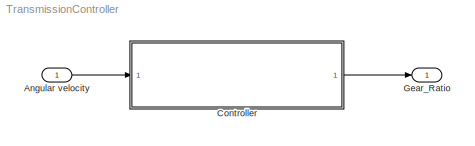
MODEL TransmissionController
KIND model
BLOCK [Inport] Angular velocity
  IconDisplay = Port number
  SID = 607
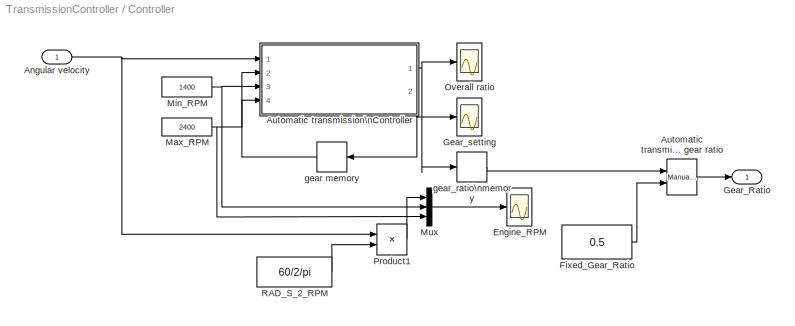
BLOCK [SubSystem] Controller
  FunctionWithSeparateData = off
  MaskHideContents = off
  MinAlgLoopOccurrences = off
  Opaque = off
  Ports = [1, 1]
  PropExecContextOutsideSubsystem = off
  RTWSystemCode = Auto
  RequestExecContextInheritance = off
  SID = 386
BLOCK [Inport] Controller/Angular velocity
  IconDisplay = Port number
  SID = 387
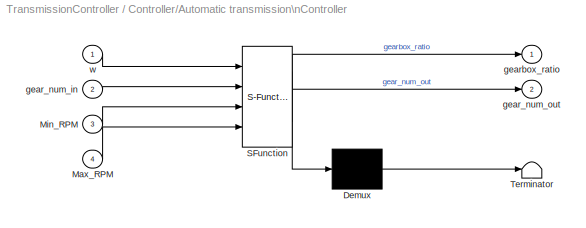
BLOCK [SubSystem] Controller/Automatic transmission\nController
  FunctionWithSeparateData = off
  MaskDescription = Embedded MATLAB block
  MaskDisplay = disp('fcn');
  MaskHideContents = off
  MaskIconFrame = on
  MaskIconOpaque = off
  MaskIconRotate = none
  MaskIconUnits = autoscale
  MaskPortRotate = default
  MaskSelfModifiable = on
  MaskType = Stateflow
  MinAlgLoopOccurrences = off
  Opaque = off
  PermitHierarchicalResolution = ExplicitOnly
  Ports = [4, 2]
  PropExecContextOutsideSubsystem = off
  RTWSystemCode = Auto
  RequestExecContextInheritance = off
  SID = 392
  TreatAsAtomicUnit = on
BLOCK [Demux] Controller/Automatic transmission\nController/ Demux 
  Outputs = 1
  Ports = [1, 1]
  SID = 392::15
BLOCK [S-Function] Controller/Automatic transmission\nController/ SFunction 
  EnableBusSupport = on
  FunctionName = sf_sfun
  PortCounts = [4 3]
  Ports = [4, 3]
  SID = 392::14
  Tag = Stateflow S-Function TransmissionController 1
BLOCK [Terminator] Controller/Automatic transmission\nController/ Terminator 
  SID = 392::17
BLOCK [Inport] Controller/Automatic transmission\nController/Max_RPM
  IconDisplay = Port number
  Port = 4
  SID = 392::22
BLOCK [Inport] Controller/Automatic transmission\nController/Min_RPM
  IconDisplay = Port number
  Port = 3
  SID = 392::21
BLOCK [Inport] Controller/Automatic transmission\nController/gear_num_in
  IconDisplay = Port number
  Port = 2
  SID = 392::19
BLOCK [Outport] Controller/Automatic transmission\nController/gear_num_out
  IconDisplay = Port number
  Port = 2
  SID = 392::5
BLOCK [Outport] Controller/Automatic transmission\nController/gearbox_ratio
  IconDisplay = Port number
  SID = 392::20
BLOCK [Inport] Controller/Automatic transmission\nController/w
  IconDisplay = Port number
  SID = 392::1
BLOCK [Reference] Controller/Automatic transmission\nOR\nFixed gear ratio  REF=simulink/Signal\nRouting/Manual Switch
  FunctionWithSeparateData = off
  GeneratePreprocessorConditionals = off
  Ports = [2, 1]
  RTWMemSecDataConstants = Inherit from model
  RTWMemSecDataInternal = Inherit from model
  RTWMemSecDataParameters = Inherit from model
  RTWMemSecFuncExecute = Inherit from model
  RTWMemSecFuncInitTerm = Inherit from model
  SID = 393
  ShowPortLabels = FromPortIcon
  SourceBlock = simulink/Signal\nRouting/Manual Switch
  SourceType = Manual Switch
  SystemSampleTime = -1
  action = 0
  sw = 0
  varsize = off
BLOCK [Scope] Controller/Engine_RPM
  DataFormat = StructureWithTime
  Floating = off
  LimitDataPoints = off
  NumInputPorts = 1
  Ports = [1]
  SID = 404
  SampleTime = 0
  SaveName = ScopeData18
  TimeRange = 500
  YMax = 2500
  YMin = 0
BLOCK [Constant] Controller/Fixed_Gear_Ratio
  SID = 405
  Value = 0.5
BLOCK [Outport] Controller/Gear_Ratio
  IconDisplay = Port number
  SID = 432
BLOCK [Scope] Controller/Gear_setting
  DataFormat = StructureWithTime
  Floating = off
  LimitDataPoints = off
  NumInputPorts = 1
  Ports = [1]
  SID = 414
  SampleTime = 0
  SaveName = ScopeData17
  TimeRange = 500
  YMin = 0
BLOCK [Constant] Controller/Max_RPM
  SID = 420
  Value = 2400
BLOCK [Constant] Controller/Min_RPM
  SID = 421
  Value = 1400
BLOCK [Mux] Controller/Mux
  DisplayOption = bar
  Inputs = 3
  Ports = [3, 1]
  SID = 423
BLOCK [Scope] Controller/Overall ratio
  DataFormat = StructureWithTime
  Floating = off
  LimitDataPoints = off
  NumInputPorts = 1
  Ports = [1]
  SID = 424
  SampleTime = 0
  SaveName = ScopeData16
  TimeRange = 500
  YMax = 0.12
  YMin = 0.04
BLOCK [Product] Controller/Product1
  InputSameDT = off
  OutDataTypeStr = Inherit: Inherit via internal rule
  Ports = [2, 1]
  SID = 425
  SaturateOnIntegerOverflow = off
BLOCK [Constant] Controller/RAD_S_2_RPM
  SID = 426
  Value = 60/2/pi
BLOCK [Memory] Controller/gear memory
  SID = 429
  X0 = 1
BLOCK [Memory] Controller/gear_ratio\nmemory
  SID = 430
  X0 = 1
BLOCK [Outport] Gear_Ratio
  IconDisplay = Port number
  SID = 608
LINE Angular velocity:1 -> Controller:1
NET Controller/Angular velocity:1 -> Controller/Automatic transmission\nController:1, Controller/Product1:1
LINE Controller/Automatic transmission\nController/ Demux :1 -> Controller/Automatic transmission\nController/ Terminator :1
LINE Controller/Automatic transmission\nController/ SFunction :1 -> Controller/Automatic transmission\nController/ Demux :1
LINE Controller/Automatic transmission\nController/ SFunction :2 -> Controller/Automatic transmission\nController/gearbox_ratio:1
LINE Controller/Automatic transmission\nController/ SFunction :3 -> Controller/Automatic transmission\nController/gear_num_out:1
LINE Controller/Automatic transmission\nController/Max_RPM:1 -> Controller/Automatic transmission\nController/ SFunction :4
LINE Controller/Automatic transmission\nController/Min_RPM:1 -> Controller/Automatic transmission\nController/ SFunction :3
LINE Controller/Automatic transmission\nController/gear_num_in:1 -> Controller/Automatic transmission\nController/ SFunction :2
LINE Controller/Automatic transmission\nController/w:1 -> Controller/Automatic transmission\nController/ SFunction :1
NET Controller/Automatic transmission\nController:1 -> Controller/Overall ratio:1, Controller/gear_ratio\nmemory:1
NET Controller/Automatic transmission\nController:2 -> Controller/Gear_setting:1, Controller/gear memory:1
LINE Controller/Automatic transmission\nOR\nFixed gear ratio:1 -> Controller/Gear_Ratio:1
LINE Controller/Fixed_Gear_Ratio:1 -> Controller/Automatic transmission\nOR\nFixed gear ratio:2
NET Controller/Max_RPM:1 -> Controller/Automatic transmission\nController:4, Controller/Mux:3
NET Controller/Min_RPM:1 -> Controller/Automatic transmission\nController:3, Controller/Mux:2
LINE Controller/Mux:1 -> Controller/Engine_RPM:1
LINE Controller/Product1:1 -> Controller/Mux:1
LINE Controller/RAD_S_2_RPM:1 -> Controller/Product1:2
LINE Controller/gear memory:1 -> Controller/Automatic transmission\nController:2
LINE Controller/gear_ratio\nmemory:1 -> Controller/Automatic transmission\nOR\nFixed gear ratio:1
LINE Controller:1 -> Gear_Ratio:1
note: NET lines group one-source signal fan-out (src -> all destinations, sorted); 1:1 wires keep LINE
CHART Controller/Automatic transmission\nController states=1 transitions=1
  STATE_LABEL 'eML_blk_kernel()'
